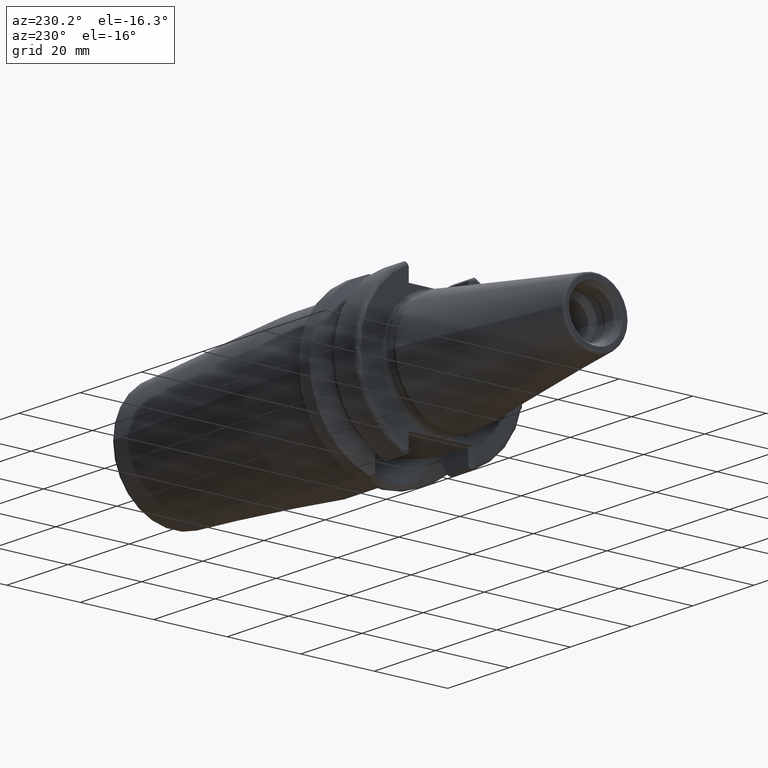
[diagram: clean part render]
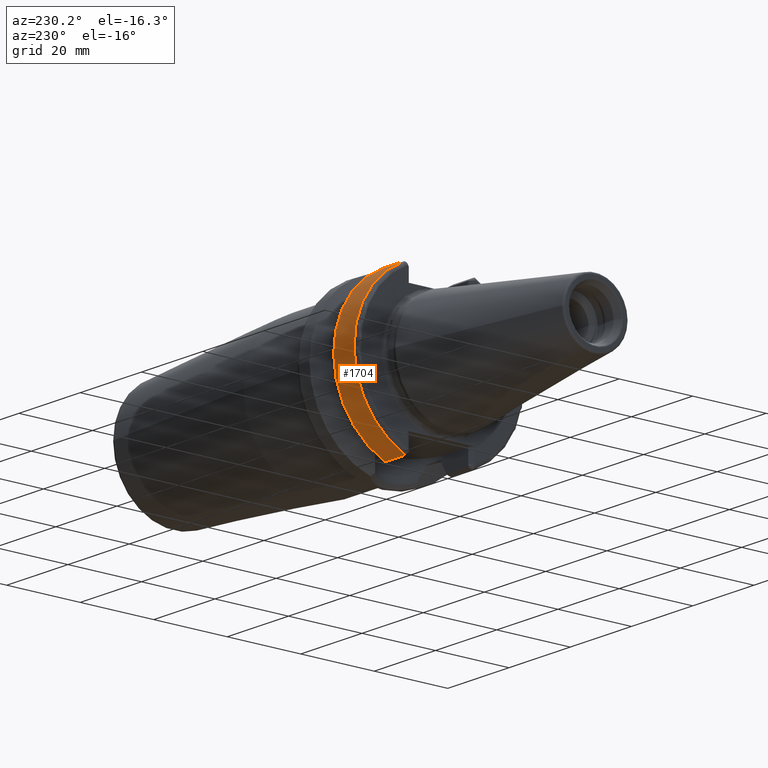
[diagram: same view with one face highlighted and labeled with its STEP entity id]
A machine part, auxiliary view. The second image highlights one B-rep face of the part: STEP entity #1704.
In plain terms, the highlighted cylindrical surface (partial cylindrical patch) has radius 22.99 mm, axis along (1, 0, 0).
Its self-contained STEP definition (entity closure, byte-faithful):
#208=CARTESIAN_POINT('',(3.E0,0.E0,0.E0));
#209=DIRECTION('',(-1.E0,0.E0,0.E0));
#210=DIRECTION('',(0.E0,4.135970895862E-1,9.104600197075E-1));
#211=AXIS2_PLACEMENT_3D('',#208,#209,#210);
#213=DIRECTION('',(-9.999999999953E-1,1.691137855745E-6,2.559578267209E-6));
#214=VECTOR('',#213,6.650924186073E0);
#215=CARTESIAN_POINT('',(9.650924158743E0,9.014912704843E0,-2.114879308434E1));
#216=LINE('',#215,#214);
#217=CARTESIAN_POINT('',(9.650924158743E0,0.E0,0.E0));
#218=DIRECTION('',(1.E0,0.E0,0.E0));
#219=DIRECTION('',(0.E0,3.921232146517E-1,-9.199127048428E-1));
#220=AXIS2_PLACEMENT_3D('',#217,#218,#219);
#222=DIRECTION('',(9.999999999877E-1,2.689360368038E-6,-4.174830095266E-6));
#223=VECTOR('',#222,6.650924175867E0);
#224=CARTESIAN_POINT('',(2.999999982958E0,9.508579202854E0,2.093150361955E1));
#225=LINE('',#224,#223);
#582=CARTESIAN_POINT('',(2.999999972701E0,9.014923952472E0,-2.114877606078E1));
#1326=CARTESIAN_POINT('',(9.650924158743E0,9.014912704843E0,-2.114879308434E1));
#1327=CARTESIAN_POINT('',(9.650924158743E0,9.508597089586E0,2.093147585308E1));
#1328=VERTEX_POINT('',#1326);
#1329=VERTEX_POINT('',#1327);
#1341=CARTESIAN_POINT('',(3.E0,9.508621994147E0,2.093146453960E1));
#1343=VERTEX_POINT('',#1341);
#1358=VERTEX_POINT('',#582);
#1690=CARTESIAN_POINT('',(-5.192E1,0.E0,0.E0));
#1691=DIRECTION('',(1.E0,0.E0,0.E0));
#1692=DIRECTION('',(0.E0,-1.E0,0.E0));
#1693=AXIS2_PLACEMENT_3D('',#1690,#1691,#1692);
#1694=CYLINDRICAL_SURFACE('',#1693,2.299E1);
#1696=ORIENTED_EDGE('',*,*,#1695,.T.);
#1698=ORIENTED_EDGE('',*,*,#1697,.F.);
#1699=ORIENTED_EDGE('',*,*,#1633,.T.);
#1701=ORIENTED_EDGE('',*,*,#1700,.F.);
#1702=EDGE_LOOP('',(#1696,#1698,#1699,#1701));
#1703=FACE_OUTER_BOUND('',#1702,.F.);
#1704=ADVANCED_FACE('',(#1703),#1694,.T.);
#212=CIRCLE('',#211,2.299E1);
#221=CIRCLE('',#220,2.299E1);
#1633=EDGE_CURVE('',#1328,#1329,#221,.T.);
#1695=EDGE_CURVE('',#1343,#1358,#212,.T.);
#1697=EDGE_CURVE('',#1328,#1358,#216,.T.);
#1700=EDGE_CURVE('',#1343,#1329,#225,.T.);